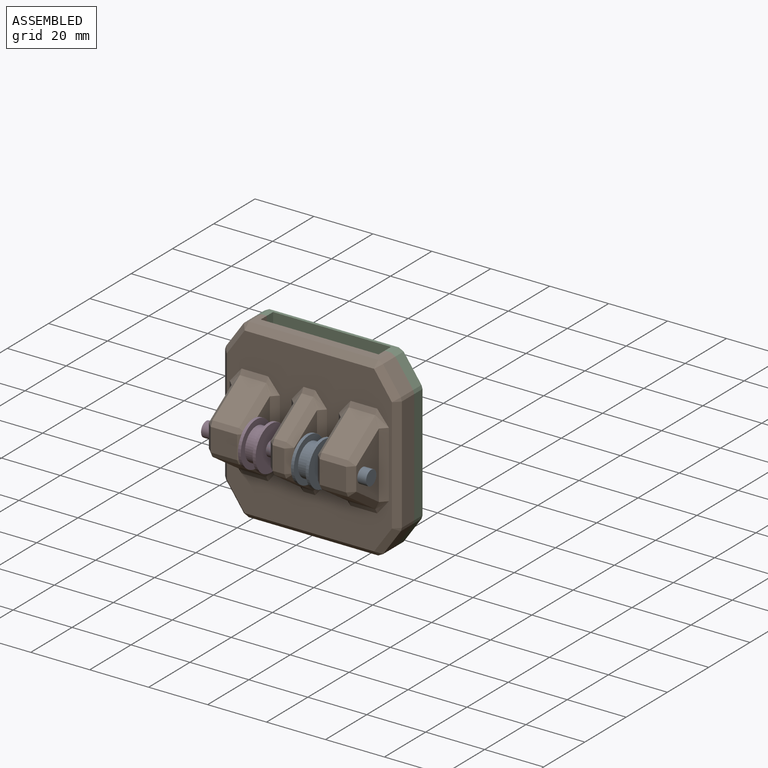
[diagram: assembled view]
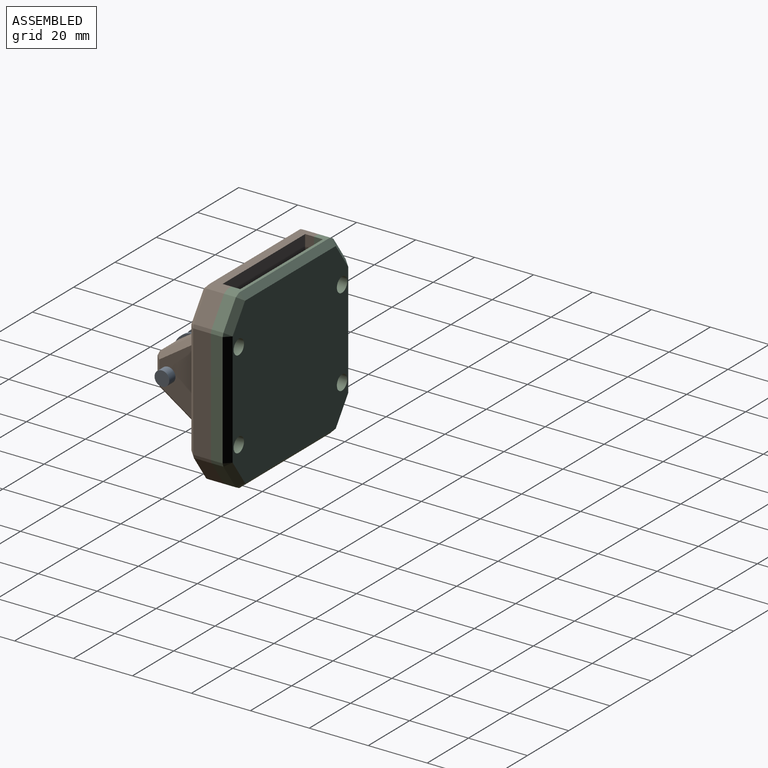
[diagram: assembled view, second angle]
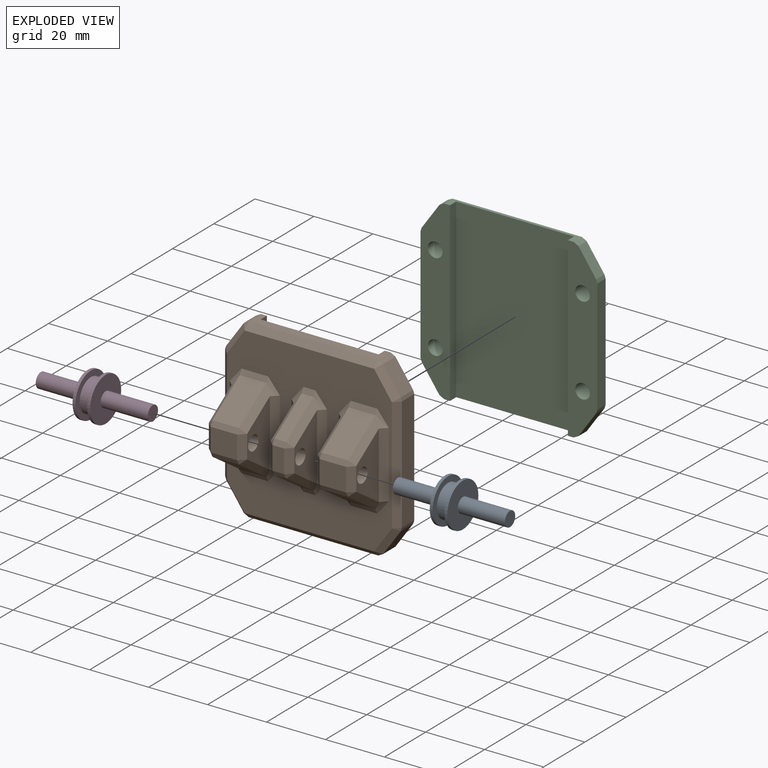
[diagram: exploded view]
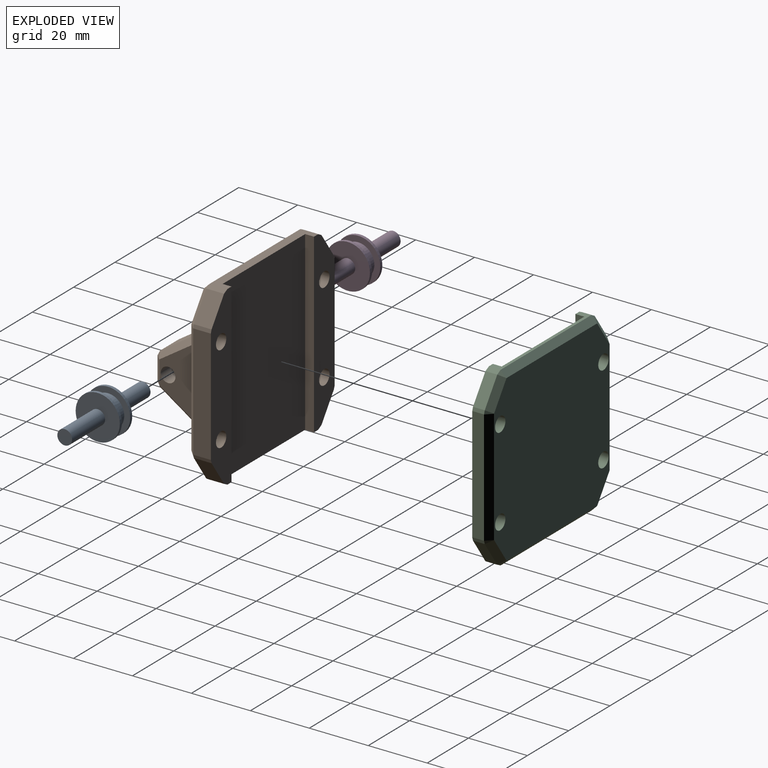
[diagram: exploded view, second angle]
ASSEMBLY  parts=4 mates=4
PART A: 11 faces, bbox 38x15x15 mm
  f0: plane 5x5mm, normal (1,0,0), area 19.6mm2, adj f1
  f1: cylinder r=2.5mm len=16mm, axis (1,0,0), area 251.3mm2, adj f0,f2
  f2: plane 15x15mm, normal (1,0,0), area 157.1mm2, adj f1,f3
  f3: cylinder r=7.5mm len=15mm, axis (1,0,0), area 47.1mm2, adj f2,f4
  f4: plane 15x15mm, normal (-1,0,0), area 81.7mm2, adj f3,f5
  f5: cylinder r=5.5mm len=11mm, axis (1,0,0), area 138.2mm2, adj f4,f6
  f6: plane 15x15mm, normal (1,0,0), area 81.7mm2, adj f5,f7
  f7: cylinder r=7.5mm len=15mm, axis (1,0,0), area 47.1mm2, adj f6,f8
  f8: plane 15x15mm, normal (-1,0,0), area 157.1mm2, adj f7,f9
  f9: cylinder r=2.5mm len=16mm, axis (1,0,0), area 251.3mm2, adj f8,f10
  f10: plane 5x5mm, normal (-1,0,0), area 19.6mm2, adj f9
PART B: 124 faces, bbox 60x23x60 mm
  f0: plane 43.92x6mm, normal (0,0,1), area 143.5mm2, adj f1,f4,f5,f37,f38,f69,f72,f98
  f1: plane 60x3mm, normal (-1,0,0), area 180mm2, adj f0,f4,f5,f44
  f2: plane 38.74x6mm, normal (1,0,0), area 232.4mm2, adj f4,f40,f43,f68
  f3: plane 8.63x6.04mm, normal (0.82,0,0.57), area 63.2mm2, adj f4,f38,f41,f43
  f4: plane 60x10mm, normal (0,1,0), area 489.6mm2, adj f0,f1,f2,f3,f14,f38,f43,f44
  f5: plane 60x40mm, normal (0,1,0), area 2400mm2, adj f0,f1,f44,f69
  f6: plane 56x56mm, normal (0,-1,0), area 1668.6mm2, adj f21,f23,f24,f27,f31,f33,f35,f36
  f7: plane 13.22x9mm, normal (0,-0.55,0.83), area 143mm2, adj f28,f29,f33,f34
  f8: plane 9x7.86mm, normal (0,-1,0), area 70.7mm2, adj f25,f29,f30,f57
  f9: plane 22.53x11mm, normal (1,0,0), area 147.5mm2, adj f17,f25,f27,f28,f56
  f10: plane 22.53x11mm, normal (-1,0,0), area 147.5mm2, adj f17,f30,f34,f36,f61
  f11: plane 13.22x8.81mm, normal (0,-0.55,0.83), area 63.5mm2, adj f19,f22,f24,f84
  f12: plane 7.86x4mm, normal (0,-1,0), area 31.4mm2, adj f18,f19,f50,f81
  f13: plane 22.53x11mm, normal (1,0,0), area 147.5mm2, adj f16,f18,f21,f22,f52
  f14: cylinder r=2.5mm len=5mm, axis (0,-1,0), area 47.1mm2, adj f4,f15
  f15: plane 5x5mm, normal (0,1,0), area 19.6mm2, adj f14
  f16: cylinder r=2.5mm len=8mm, axis (-1,0,0), area 125.7mm2, adj f13,f77
  f17: cylinder r=2.5mm len=13mm, axis (-1,0,0), area 204.2mm2, adj f9,f10
  f18: plane 7.86x2mm, normal (0.71,-0.71,0), area 22.2mm2, adj f12,f13,f20,f51
  f19: plane 4x1.66mm, normal (0,-0.88,0.47), area 7.5mm2, adj f11,f12,f20,f82
  f20: plane 2x2mm, normal (0.66,-0.66,0.35), area 2.5mm2, adj f18,f19,f22
  f21: plane 22.53x2mm, normal (0.71,-0.71,0), area 63.7mm2, adj f6,f13,f23,f53
  f22: plane 13.22x10.48mm, normal (0.71,-0.39,0.59), area 41.2mm2, adj f11,f13,f20,f23
  f23: bspline ~4.81x4mm, area 9.7mm2, adj f6,f21,f22,f24
  f24: plane 4x1.66mm, normal (0,-0.88,0.47), area 7.5mm2, adj f6,f11,f23,f85
  f25: plane 7.86x2mm, normal (0.71,-0.71,0), area 22.2mm2, adj f8,f9,f26,f55
  f26: plane 2x2mm, normal (0.66,-0.66,0.35), area 2.5mm2, adj f25,f28,f29
  f27: plane 22.53x2mm, normal (0.71,-0.71,0), area 63.7mm2, adj f6,f9,f31,f58
  f28: plane 13.22x10.48mm, normal (0.71,-0.39,0.59), area 41.2mm2, adj f7,f9,f26,f31
  f29: plane 9x1.66mm, normal (0,-0.88,0.47), area 17mm2, adj f7,f8,f26,f32
  f30: plane 7.86x2mm, normal (-0.71,-0.71,0), area 22.2mm2, adj f8,f10,f32,f59
  f31: bspline ~4.81x4mm, area 9.7mm2, adj f6,f27,f28,f33
  f32: plane 2x2mm, normal (-0.66,-0.66,0.35), area 2.5mm2, adj f29,f30,f34
  f33: plane 9x1.66mm, normal (0,-0.88,0.47), area 17mm2, adj f6,f7,f31,f35
  f34: plane 13.22x10.48mm, normal (-0.71,-0.39,0.59), area 41.2mm2, adj f7,f10,f32,f35
  f35: bspline ~4.81x4mm, area 9.7mm2, adj f6,f33,f34,f36
  f36: plane 22.53x2mm, normal (-0.71,-0.71,0), area 63.7mm2, adj f6,f10,f35,f62
  f37: plane 43.92x2mm, normal (0,-0.71,0.71), area 124.2mm2, adj f0,f6,f39,f99
  f38: plane 6x1.64mm, normal (0.46,0,0.89), area 11.1mm2, adj f0,f3,f4,f39
  f39: plane 2x2mm, normal (0.35,-0.66,0.66), area 2.5mm2, adj f37,f38,f41
  f40: plane 38.74x2mm, normal (0.71,-0.71,0), area 109.6mm2, adj f2,f6,f42,f67
  f41: plane 9.78x7.68mm, normal (0.58,-0.71,0.41), area 29.8mm2, adj f3,f6,f39,f42
  f42: plane 2x2mm, normal (0.69,-0.69,0.22), area 1.7mm2, adj f40,f41,f43
  f43: plane 6x1.15mm, normal (0.95,0,0.3), area 7.2mm2, adj f2,f3,f4,f42
  f44: plane 43.92x6mm, normal (0,0,-1), area 143.5mm2, adj f1,f4,f5,f63,f64,f69,f72,f119
  f45: plane 8.63x6.04mm, normal (0.82,0,-0.57), area 63.2mm2, adj f4,f64,f66,f68
  f46: plane 13.22x9mm, normal (0,-0.55,-0.83), area 143mm2, adj f56,f57,f60,f61
  f47: plane 13.22x8.81mm, normal (0,-0.55,-0.83), area 63.5mm2, adj f50,f52,f54,f109
  f48: cylinder r=2.5mm len=5mm, axis (0,-1,0), area 47.1mm2, adj f4,f49
  f49: plane 5x5mm, normal (0,1,0), area 19.6mm2, adj f48
  f50: plane 4x1.66mm, normal (0,-0.88,-0.47), area 7.5mm2, adj f12,f47,f51,f108
  f51: plane 2x2mm, normal (0.66,-0.66,-0.35), area 2.5mm2, adj f18,f50,f52
  f52: plane 13.22x10.48mm, normal (0.71,-0.39,-0.59), area 41.2mm2, adj f13,f47,f51,f53
  f53: bspline ~4.81x4mm, area 9.7mm2, adj f6,f21,f52,f54
  f54: plane 4x1.66mm, normal (0,-0.88,-0.47), area 7.5mm2, adj f6,f47,f53,f110
  f55: plane 2x2mm, normal (0.66,-0.66,-0.35), area 2.5mm2, adj f25,f56,f57
  f56: plane 13.22x10.48mm, normal (0.71,-0.39,-0.59), area 41.2mm2, adj f9,f46,f55,f58
  f57: plane 9x1.66mm, normal (0,-0.88,-0.47), area 17mm2, adj f8,f46,f55,f59
  f58: bspline ~4.81x4mm, area 9.7mm2, adj f6,f27,f56,f60
  f59: plane 2x2mm, normal (-0.66,-0.66,-0.35), area 2.5mm2, adj f30,f57,f61
  f60: plane 9x1.66mm, normal (0,-0.88,-0.47), area 17mm2, adj f6,f46,f58,f62
  f61: plane 13.22x10.48mm, normal (-0.71,-0.39,-0.59), area 41.2mm2, adj f10,f46,f59,f62
  f62: bspline ~4.81x4mm, area 9.7mm2, adj f6,f36,f60,f61
  f63: plane 43.92x2mm, normal (0,-0.71,-0.71), area 124.2mm2, adj f6,f44,f65,f120
  f64: plane 6x1.64mm, normal (0.46,0,-0.89), area 11.1mm2, adj f4,f44,f45,f65
  f65: plane 2x2mm, normal (0.35,-0.66,-0.66), area 2.5mm2, adj f63,f64,f66
  f66: plane 9.78x7.68mm, normal (0.58,-0.71,-0.41), area 29.8mm2, adj f6,f45,f65,f67
  f67: plane 2x2mm, normal (0.69,-0.69,-0.22), area 1.7mm2, adj f40,f66,f68
  f68: plane 6x1.15mm, normal (0.95,0,-0.3), area 7.2mm2, adj f2,f4,f45,f67
  f69: plane 60x3mm, normal (1,0,0), area 180mm2, adj f0,f5,f44,f72
  f70: plane 38.74x6mm, normal (-1,0,0), area 232.4mm2, adj f72,f100,f103,f123
  f71: plane 8.63x6.04mm, normal (-0.82,0,0.57), area 63.2mm2, adj f72,f98,f101,f103
  f72: plane 60x10mm, normal (0,1,0), area 489.6mm2, adj f0,f44,f69,f70,f71,f78,f98,f103
  f73: plane 13.22x9mm, normal (0,-0.55,0.83), area 143mm2, adj f89,f90,f94,f95
  f74: plane 9x7.86mm, normal (0,-1,0), area 70.7mm2, adj f86,f90,f91,f113
  f75: plane 22.53x11mm, normal (-1,0,0), area 147.5mm2, adj f80,f86,f88,f89,f112
  f76: plane 22.53x11mm, normal (1,0,0), area 147.5mm2, adj f80,f91,f95,f97,f117
  f77: plane 22.53x11mm, normal (-1,0,0), area 147.5mm2, adj f16,f81,f83,f84,f109
  f78: cylinder r=2.5mm len=5mm, axis (0,-1,0), area 47.1mm2, adj f72,f79
  f79: plane 5x5mm, normal (0,1,0), area 19.6mm2, adj f78
  f80: cylinder r=2.5mm len=13mm, axis (1,0,0), area 204.2mm2, adj f75,f76
  f81: plane 7.86x2mm, normal (-0.71,-0.71,0), area 22.2mm2, adj f12,f77,f82,f108
  f82: plane 2x2mm, normal (-0.66,-0.66,0.35), area 2.5mm2, adj f19,f81,f84
  f83: plane 22.53x2mm, normal (-0.71,-0.71,0), area 63.7mm2, adj f6,f77,f85,f110
  f84: plane 13.22x10.48mm, normal (-0.71,-0.39,0.59), area 41.2mm2, adj f11,f77,f82,f85
  f85: bspline ~4.81x4mm, area 9.7mm2, adj f6,f24,f83,f84
  f86: plane 7.86x2mm, normal (-0.71,-0.71,0), area 22.2mm2, adj f74,f75,f87,f111
  f87: plane 2x2mm, normal (-0.66,-0.66,0.35), area 2.5mm2, adj f86,f89,f90
  f88: plane 22.53x2mm, normal (-0.71,-0.71,0), area 63.7mm2, adj f6,f75,f92,f114
  f89: plane 13.22x10.48mm, normal (-0.71,-0.39,0.59), area 41.2mm2, adj f73,f75,f87,f92
  f90: plane 9x1.66mm, normal (0,-0.88,0.47), area 17mm2, adj f73,f74,f87,f93
  f91: plane 7.86x2mm, normal (0.71,-0.71,0), area 22.2mm2, adj f74,f76,f93,f115
  f92: bspline ~4.81x4mm, area 9.7mm2, adj f6,f88,f89,f94
  f93: plane 2x2mm, normal (0.66,-0.66,0.35), area 2.5mm2, adj f90,f91,f95
  f94: plane 9x1.66mm, normal (0,-0.88,0.47), area 17mm2, adj f6,f73,f92,f96
  f95: plane 13.22x10.48mm, normal (0.71,-0.39,0.59), area 41.2mm2, adj f73,f76,f93,f96
  f96: bspline ~4.81x4mm, area 9.7mm2, adj f6,f94,f95,f97
  f97: plane 22.53x2mm, normal (0.71,-0.71,0), area 63.7mm2, adj f6,f76,f96,f118
  f98: plane 6x1.64mm, normal (-0.46,0,0.89), area 11.1mm2, adj f0,f71,f72,f99
  f99: plane 2x2mm, normal (-0.35,-0.66,0.66), area 2.5mm2, adj f37,f98,f101
  f100: plane 38.74x2mm, normal (-0.71,-0.71,0), area 109.6mm2, adj f6,f70,f102,f122
  f101: plane 9.78x7.68mm, normal (-0.58,-0.71,0.41), area 29.8mm2, adj f6,f71,f99,f102
  f102: plane 2x2mm, normal (-0.69,-0.69,0.22), area 1.7mm2, adj f100,f101,f103
  f103: plane 6x1.15mm, normal (-0.95,0,0.3), area 7.2mm2, adj f70,f71,f72,f102
  f104: plane 8.63x6.04mm, normal (-0.82,0,-0.57), area 63.2mm2, adj f72,f119,f121,f123
  f105: plane 13.22x9mm, normal (0,-0.55,-0.83), area 143mm2, adj f112,f113,f116,f117
  f106: cylinder r=2.5mm len=5mm, axis (0,-1,0), area 47.1mm2, adj f72,f107
  f107: plane 5x5mm, normal (0,1,0), area 19.6mm2, adj f106
  f108: plane 2x2mm, normal (-0.66,-0.66,-0.35), area 2.5mm2, adj f50,f81,f109
  f109: plane 13.22x10.48mm, normal (-0.71,-0.39,-0.59), area 41.2mm2, adj f47,f77,f108,f110
  f110: bspline ~4.81x4mm, area 9.7mm2, adj f6,f54,f83,f109
  f111: plane 2x2mm, normal (-0.66,-0.66,-0.35), area 2.5mm2, adj f86,f112,f113
  f112: plane 13.22x10.48mm, normal (-0.71,-0.39,-0.59), area 41.2mm2, adj f75,f105,f111,f114
  f113: plane 9x1.66mm, normal (0,-0.88,-0.47), area 17mm2, adj f74,f105,f111,f115
  f114: bspline ~4.81x4mm, area 9.7mm2, adj f6,f88,f112,f116
  f115: plane 2x2mm, normal (0.66,-0.66,-0.35), area 2.5mm2, adj f91,f113,f117
  f116: plane 9x1.66mm, normal (0,-0.88,-0.47), area 17mm2, adj f6,f105,f114,f118
  f117: plane 13.22x10.48mm, normal (0.71,-0.39,-0.59), area 41.2mm2, adj f76,f105,f115,f118
  f118: bspline ~4.81x4mm, area 9.7mm2, adj f6,f97,f116,f117
  f119: plane 6x1.64mm, normal (-0.46,0,-0.89), area 11.1mm2, adj f44,f72,f104,f120
  f120: plane 2x2mm, normal (-0.35,-0.66,-0.66), area 2.5mm2, adj f63,f119,f121
  f121: plane 9.78x7.68mm, normal (-0.58,-0.71,-0.41), area 29.8mm2, adj f6,f104,f120,f122
  f122: plane 2x2mm, normal (-0.69,-0.69,-0.22), area 1.7mm2, adj f100,f121,f123
  f123: plane 6x1.15mm, normal (-0.95,0,-0.3), area 7.2mm2, adj f70,f72,f104,f122
PART C: 42 faces, bbox 60x6x60 mm
  f0: plane 60x10mm, normal (0,-1,0), area 489.6mm2, adj f1,f2,f3,f5,f7,f8,f11,f15
  f1: plane 43.92x4mm, normal (0,0,1), area 55.7mm2, adj f0,f5,f6,f8,f9,f24,f27,f29
  f2: plane 38.74x4mm, normal (1,0,0), area 155mm2, adj f0,f10,f11,f20
  f3: plane 8.63x6.04mm, normal (0.82,0,0.57), area 42.1mm2, adj f0,f8,f11,f14
  f4: plane 56x56mm, normal (0,1,0), area 2953.2mm2, adj f7,f9,f10,f14,f17,f19,f23,f28
  f5: plane 60x3mm, normal (-1,0,0), area 180mm2, adj f0,f1,f6,f15
  f6: plane 60x40mm, normal (0,-1,0), area 2400mm2, adj f1,f5,f15,f27
  f7: cylinder r=2.5mm len=6mm, axis (0,-1,0), area 94.2mm2, adj f0,f4
  f8: plane 4x1.64mm, normal (0.46,0,0.89), area 7.4mm2, adj f0,f1,f3,f12
  f9: plane 43.92x2mm, normal (0,0.71,0.71), area 124.2mm2, adj f1,f4,f12,f32
  f10: plane 38.74x2mm, normal (0.71,0.71,0), area 109.6mm2, adj f2,f4,f13,f22
  f11: plane 4x1.15mm, normal (0.95,0,0.3), area 4.8mm2, adj f0,f2,f3,f13
  f12: plane 2x2mm, normal (0.35,0.66,0.66), area 2.5mm2, adj f8,f9,f14
  f13: plane 2x2mm, normal (0.69,0.69,0.22), area 1.7mm2, adj f10,f11,f14
  f14: plane 9.78x7.68mm, normal (0.58,0.71,0.41), area 29.8mm2, adj f3,f4,f12,f13
  f15: plane 43.92x4mm, normal (0,0,-1), area 55.7mm2, adj f0,f5,f6,f18,f19,f24,f27,f37
  f16: plane 8.63x6.04mm, normal (0.82,0,-0.57), area 42.1mm2, adj f0,f18,f20,f23
  f17: cylinder r=2.5mm len=6mm, axis (0,-1,0), area 94.2mm2, adj f0,f4
  f18: plane 4x1.64mm, normal (0.46,0,-0.89), area 7.4mm2, adj f0,f15,f16,f21
  f19: plane 43.92x2mm, normal (0,0.71,-0.71), area 124.2mm2, adj f4,f15,f21,f39
  f20: plane 4x1.15mm, normal (0.95,0,-0.3), area 4.8mm2, adj f0,f2,f16,f22
  f21: plane 2x2mm, normal (0.35,0.66,-0.66), area 2.5mm2, adj f18,f19,f23
  f22: plane 2x2mm, normal (0.69,0.69,-0.22), area 1.7mm2, adj f10,f20,f23
  f23: plane 9.78x7.68mm, normal (0.58,0.71,-0.41), area 29.8mm2, adj f4,f16,f21,f22
  f24: plane 60x10mm, normal (0,-1,0), area 489.6mm2, adj f1,f15,f25,f26,f27,f28,f29,f31
  f25: plane 38.74x4mm, normal (-1,0,0), area 155mm2, adj f24,f30,f31,f38
  f26: plane 8.63x6.04mm, normal (-0.82,0,0.57), area 42.1mm2, adj f24,f29,f31,f34
  f27: plane 60x3mm, normal (1,0,0), area 180mm2, adj f1,f6,f15,f24
  f28: cylinder r=2.5mm len=6mm, axis (0,-1,0), area 94.2mm2, adj f4,f24
  f29: plane 4x1.64mm, normal (-0.46,0,0.89), area 7.4mm2, adj f1,f24,f26,f32
  f30: plane 38.74x2mm, normal (-0.71,0.71,0), area 109.6mm2, adj f4,f25,f33,f40
  f31: plane 4x1.15mm, normal (-0.95,0,0.3), area 4.8mm2, adj f24,f25,f26,f33
  f32: plane 2x2mm, normal (-0.35,0.66,0.66), area 2.5mm2, adj f9,f29,f34
  f33: plane 2x2mm, normal (-0.69,0.69,0.22), area 1.7mm2, adj f30,f31,f34
  f34: plane 9.78x7.68mm, normal (-0.58,0.71,0.41), area 29.8mm2, adj f4,f26,f32,f33
  f35: plane 8.63x6.04mm, normal (-0.82,0,-0.57), area 42.1mm2, adj f24,f37,f38,f41
  f36: cylinder r=2.5mm len=6mm, axis (0,-1,0), area 94.2mm2, adj f4,f24
  f37: plane 4x1.64mm, normal (-0.46,0,-0.89), area 7.4mm2, adj f15,f24,f35,f39
  f38: plane 4x1.15mm, normal (-0.95,0,-0.3), area 4.8mm2, adj f24,f25,f35,f40
  f39: plane 2x2mm, normal (-0.35,0.66,-0.66), area 2.5mm2, adj f19,f37,f41
  f40: plane 2x2mm, normal (-0.69,0.69,-0.22), area 1.7mm2, adj f30,f38,f41
  f41: plane 9.78x7.68mm, normal (-0.58,0.71,-0.41), area 29.8mm2, adj f4,f35,f39,f40
PART D: same geometry as A
PLACE A t=(11.29,8.18,-6.68)mm
PLACE B t=(2.29,8.18,-6.68)mm
PLACE C t=(2.29,8.18,-6.68)mm
PLACE D t=(-6.71,8.18,-6.68)mm
MATE revolute C.f17 <-> B.f48  axis (0,-1,0) through (27.29,11.18,-21.68)mm
MATE revolute C.f7 <-> B.f14  axis (0,-1,0) through (27.29,11.18,8.32)mm
MATE revolute A.f1 <-> B.f16  axis (1,0,0) through (14.29,-6.82,-6.68)mm
MATE revolute B.f16 <-> D.f1  axis (1,0,0) through (-9.71,-6.82,-6.68)mm
